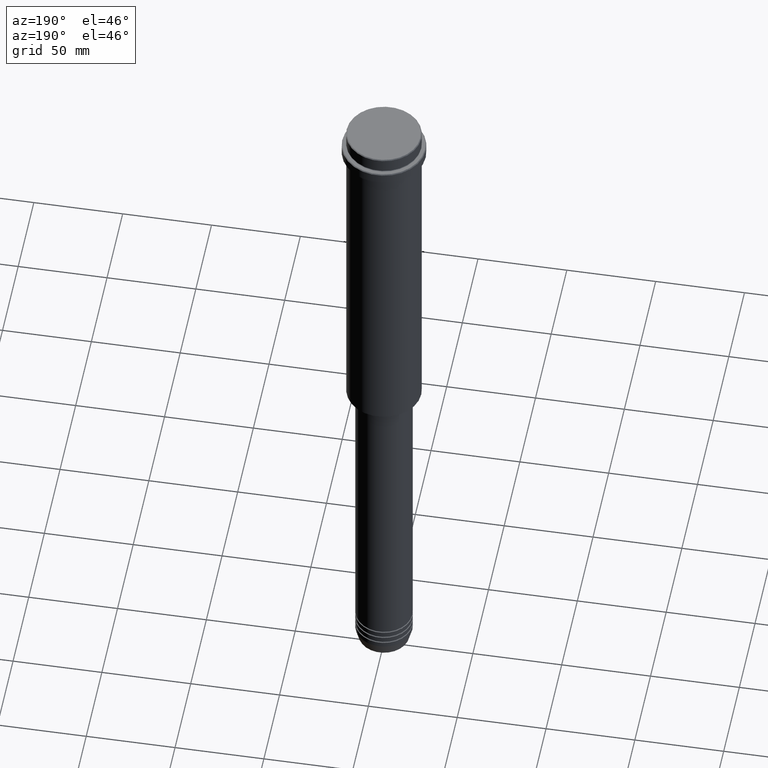
[diagram: clean part render]
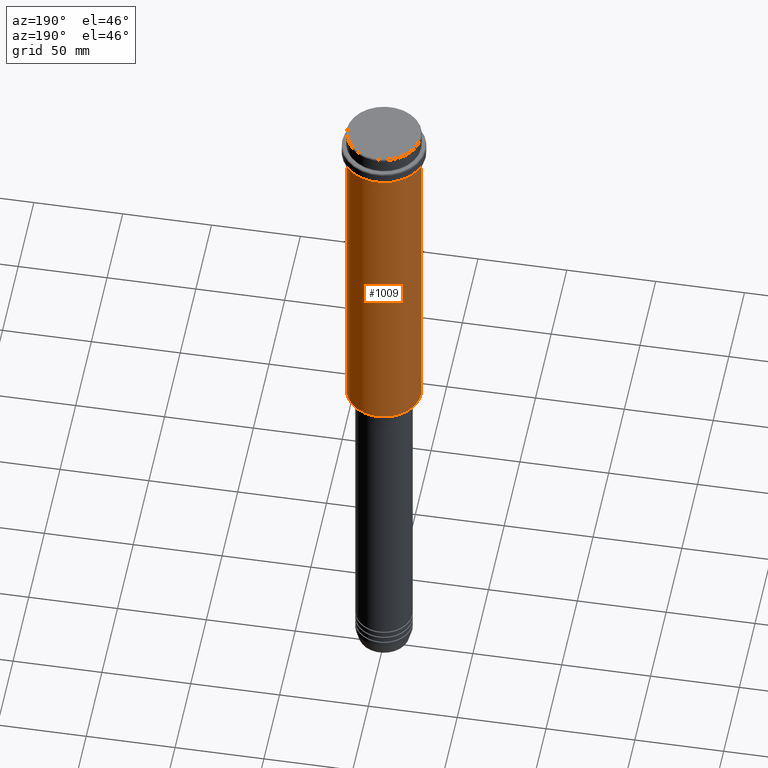
[diagram: same view with one face highlighted and labeled with its STEP entity id]
A machine part, auxiliary view. The second image highlights one B-rep face of the part: STEP entity #1009.
In plain terms, the highlighted cylindrical surface (partial cylindrical patch) has radius 21 mm, axis along (-0, -0, 1).
Its self-contained STEP definition (entity closure, byte-faithful):
#18 = DIRECTION ( 'NONE',  ( -0.000000000000000000, -0.000000000000000000, 1.000000000000000000 ) ) ;
#115 = AXIS2_PLACEMENT_3D ( 'NONE', #844, #698, #940 ) ;
#121 = ORIENTED_EDGE ( 'NONE', *, *, #781, .T. ) ;
#123 = DIRECTION ( 'NONE',  ( 1.000000000000000000, 0.000000000000000000, 0.000000000000000000 ) ) ;
#157 = EDGE_CURVE ( 'NONE', #1136, #348, #858, .T. ) ;
#228 = FACE_OUTER_BOUND ( 'NONE', #1114, .T. ) ;
#232 = CARTESIAN_POINT ( 'NONE',  ( -20.99999999999999645, 2.571758278209441267E-15, 0.000000000000000000 ) ) ;
#238 = VERTEX_POINT ( 'NONE', #1116 ) ;
#339 = LINE ( 'NONE', #232, #491 ) ;
#348 = VERTEX_POINT ( 'NONE', #470 ) ;
#398 = CIRCLE ( 'NONE', #115, 20.99999999999999645 ) ;
#400 = VECTOR ( 'NONE', #977, 1000.000000000000000 ) ;
#462 = CARTESIAN_POINT ( 'NONE',  ( -20.99999999999999645, 2.571758278209441267E-15, -204.5000000000000284 ) ) ;
#470 = CARTESIAN_POINT ( 'NONE',  ( 20.99999999999999645, 0.000000000000000000, -16.00000000000000355 ) ) ;
#491 = VECTOR ( 'NONE', #1102, 1000.000000000000000 ) ;
#517 = DIRECTION ( 'NONE',  ( 1.000000000000000000, 0.000000000000000000, 0.000000000000000000 ) ) ;
#533 = CIRCLE ( 'NONE', #1076, 20.99999999999999645 ) ;
#567 = CYLINDRICAL_SURFACE ( 'NONE', #623, 20.99999999999999645 ) ;
#575 = CARTESIAN_POINT ( 'NONE',  ( 0.000000000000000000, 0.000000000000000000, 0.000000000000000000 ) ) ;
#623 = AXIS2_PLACEMENT_3D ( 'NONE', #575, #18, #123 ) ;
#698 = DIRECTION ( 'NONE',  ( -0.000000000000000000, -0.000000000000000000, 1.000000000000000000 ) ) ;
#704 = DIRECTION ( 'NONE',  ( -0.000000000000000000, -0.000000000000000000, 1.000000000000000000 ) ) ;
#781 = EDGE_CURVE ( 'NONE', #1136, #1027, #398, .T. ) ;
#806 = EDGE_CURVE ( 'NONE', #348, #238, #533, .T. ) ;
#819 = ORIENTED_EDGE ( 'NONE', *, *, #806, .F. ) ;
#844 = CARTESIAN_POINT ( 'NONE',  ( 0.000000000000000000, 0.000000000000000000, -204.5000000000000284 ) ) ;
#858 = LINE ( 'NONE', #1283, #400 ) ;
#940 = DIRECTION ( 'NONE',  ( -1.000000000000000000, 0.000000000000000000, 0.000000000000000000 ) ) ;
#977 = DIRECTION ( 'NONE',  ( -0.000000000000000000, -0.000000000000000000, 1.000000000000000000 ) ) ;
#1009 = ADVANCED_FACE ( 'NONE', ( #228 ), #567, .T. ) ;
#1027 = VERTEX_POINT ( 'NONE', #462 ) ;
#1076 = AXIS2_PLACEMENT_3D ( 'NONE', #1156, #704, #517 ) ;
#1102 = DIRECTION ( 'NONE',  ( -0.000000000000000000, -0.000000000000000000, 1.000000000000000000 ) ) ;
#1114 = EDGE_LOOP ( 'NONE', ( #121, #1138, #819, #1239 ) ) ;
#1116 = CARTESIAN_POINT ( 'NONE',  ( -20.99999999999999645, 2.571758278209441267E-15, -16.00000000000000355 ) ) ;
#1136 = VERTEX_POINT ( 'NONE', #1313 ) ;
#1138 = ORIENTED_EDGE ( 'NONE', *, *, #1143, .T. ) ;
#1143 = EDGE_CURVE ( 'NONE', #1027, #238, #339, .T. ) ;
#1156 = CARTESIAN_POINT ( 'NONE',  ( 0.000000000000000000, 0.000000000000000000, -16.00000000000000355 ) ) ;
#1239 = ORIENTED_EDGE ( 'NONE', *, *, #157, .F. ) ;
#1283 = CARTESIAN_POINT ( 'NONE',  ( 20.99999999999999645, 0.000000000000000000, 0.000000000000000000 ) ) ;
#1313 = CARTESIAN_POINT ( 'NONE',  ( 20.99999999999999645, 0.000000000000000000, -204.5000000000000284 ) ) ;